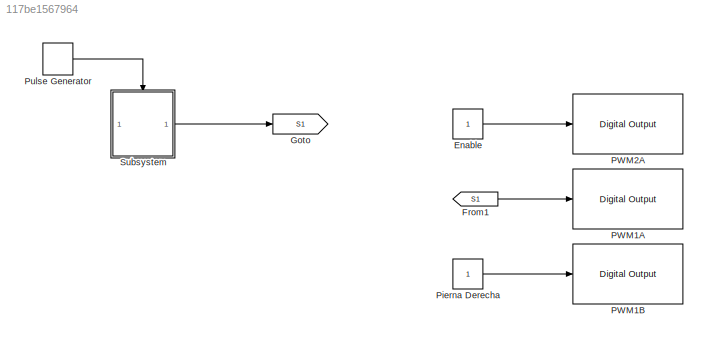
MODEL slx_117be1567964
KIND model
CONFIG AbsTol = auto
CONFIG EnableMultiTasking = on
CONFIG FixedStep = 1e-5
CONFIG MaxStep = auto
CONFIG MinStep = auto
CONFIG RelTol = 1e-3
CONFIG SampleTimeConstraint = Unconstrained
CONFIG SolverName = FixedStepAuto
CONFIG StartTime = 0.0
CONFIG StopTime = Inf
BLOCK [Constant] Enable
BLOCK [From] From1
  GotoTag = S1
BLOCK [Goto] Goto
  GotoTag = S1
BLOCK [Reference] PWM1A  REF=c2837xDlib/Digital Output
  SourceBlock = c2837xDlib/Digital Output
  SourceType = F2837x GPIO Digital Output
  UserDataPersistent = on
BLOCK [Reference] PWM1B  REF=c2837xDlib/Digital Output
  SourceBlock = c2837xDlib/Digital Output
  SourceType = F2837x GPIO Digital Output
  UserDataPersistent = on
BLOCK [Reference] PWM2A  REF=c2837xDlib/Digital Output
  SourceBlock = c2837xDlib/Digital Output
  SourceType = F2837x GPIO Digital Output
  UserDataPersistent = on
BLOCK [Constant] Pierna Derecha
BLOCK [DiscretePulseGenerator] Pulse Generator
  Period = 1e-6
  PulseType = Time based
  PulseWidth = 50
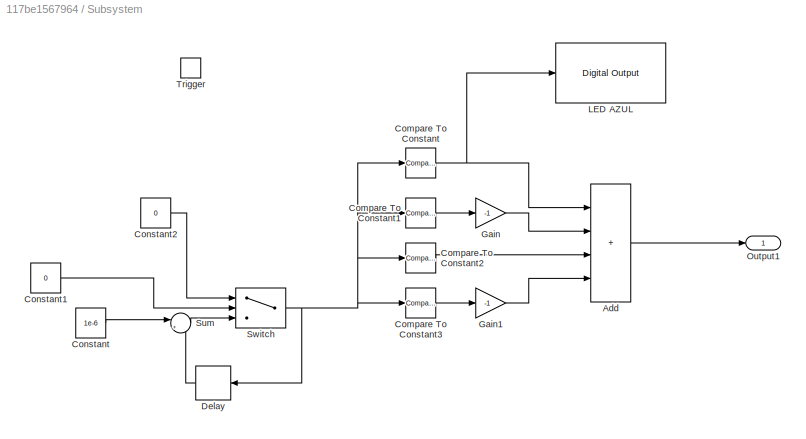
BLOCK [SubSystem] Subsystem
BLOCK [Sum] Subsystem/Add
  IconShape = rectangular
  Inputs = ++++
BLOCK [Reference] Subsystem/Compare To Constant  REF=simulink/Logic and Bit
Operations/Compare
To Constant
  SourceBlock = simulink/Logic and Bit\nOperations/Compare\nTo Constant
  SourceType = Compare To Constant
BLOCK [Reference] Subsystem/Compare To Constant1  REF=simulink/Logic and Bit
Operations/Compare
To Constant
  SourceBlock = simulink/Logic and Bit\nOperations/Compare\nTo Constant
  SourceType = Compare To Constant
BLOCK [Reference] Subsystem/Compare To Constant2  REF=simulink/Logic and Bit
Operations/Compare
To Constant
  SourceBlock = simulink/Logic and Bit\nOperations/Compare\nTo Constant
  SourceType = Compare To Constant
BLOCK [Reference] Subsystem/Compare To Constant3  REF=simulink/Logic and Bit
Operations/Compare
To Constant
  SourceBlock = simulink/Logic and Bit\nOperations/Compare\nTo Constant
  SourceType = Compare To Constant
BLOCK [Constant] Subsystem/Constant
  Value = 1e-6
BLOCK [Constant] Subsystem/Constant1
  Value = 0
BLOCK [Constant] Subsystem/Constant2
  Value = 0
BLOCK [Delay] Subsystem/Delay
  DelayLength = 1
  InputPortMap = u0
  NameLocation = top
BLOCK [Gain] Subsystem/Gain
  Gain = -1
BLOCK [Gain] Subsystem/Gain1
  Gain = -1
BLOCK [Reference] Subsystem/LED AZUL  REF=c2837xDlib/Digital Output
  SourceBlock = c2837xDlib/Digital Output
  SourceType = F2837x GPIO Digital Output
  UserDataPersistent = on
BLOCK [Outport] Subsystem/Output1
BLOCK [Sum] Subsystem/Sum
  Inputs = |++
BLOCK [Switch] Subsystem/Switch
  Criteria = u2 > Threshold
  InputSameDT = off
  SaturateOnIntegerOverflow = off
  Threshold = 0.5
BLOCK [TriggerPort] Subsystem/Trigger
  StatesWhenEnabling = held
  VariantControl = (inherit)
LINE Enable:1 -> PWM2A:1
LINE From1:1 -> PWM1A:1
LINE Pierna Derecha:1 -> PWM1B:1
LINE Pulse Generator:1 -> Subsystem:trigger
LINE Subsystem/Add:1 -> Subsystem/Output1:1
LINE Subsystem/Compare To Constant1:1 -> Subsystem/Gain:1
LINE Subsystem/Compare To Constant2:1 -> Subsystem/Add:3
LINE Subsystem/Compare To Constant3:1 -> Subsystem/Gain1:1
NET Subsystem/Compare To Constant:1 -> Subsystem/Add:1, Subsystem/LED AZUL:1
LINE Subsystem/Constant1:1 -> Subsystem/Switch:2
LINE Subsystem/Constant2:1 -> Subsystem/Switch:1
LINE Subsystem/Constant:1 -> Subsystem/Sum:1
LINE Subsystem/Delay:1 -> Subsystem/Sum:2
LINE Subsystem/Gain1:1 -> Subsystem/Add:4
LINE Subsystem/Gain:1 -> Subsystem/Add:2
LINE Subsystem/Sum:1 -> Subsystem/Switch:3
NET Subsystem/Switch:1 -> Subsystem/Compare To Constant1:1, Subsystem/Compare To Constant2:1, Subsystem/Compare To Constant3:1, Subsystem/Compare To Constant:1, Subsystem/Delay:1
LINE Subsystem:1 -> Goto:1
note: NET lines group one-source signal fan-out (src -> all destinations, sorted); 1:1 wires keep LINE
